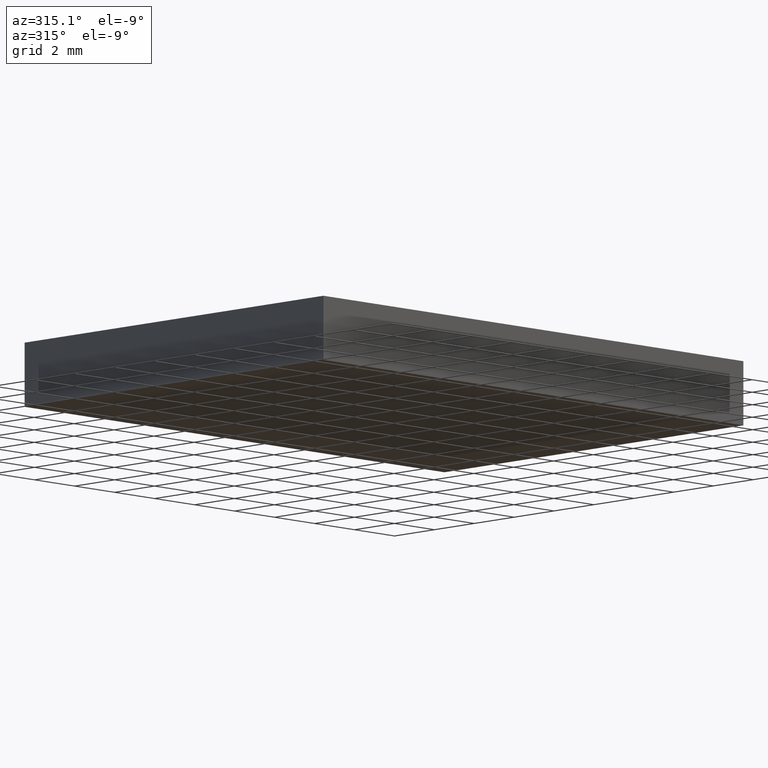
[diagram: clean part render]
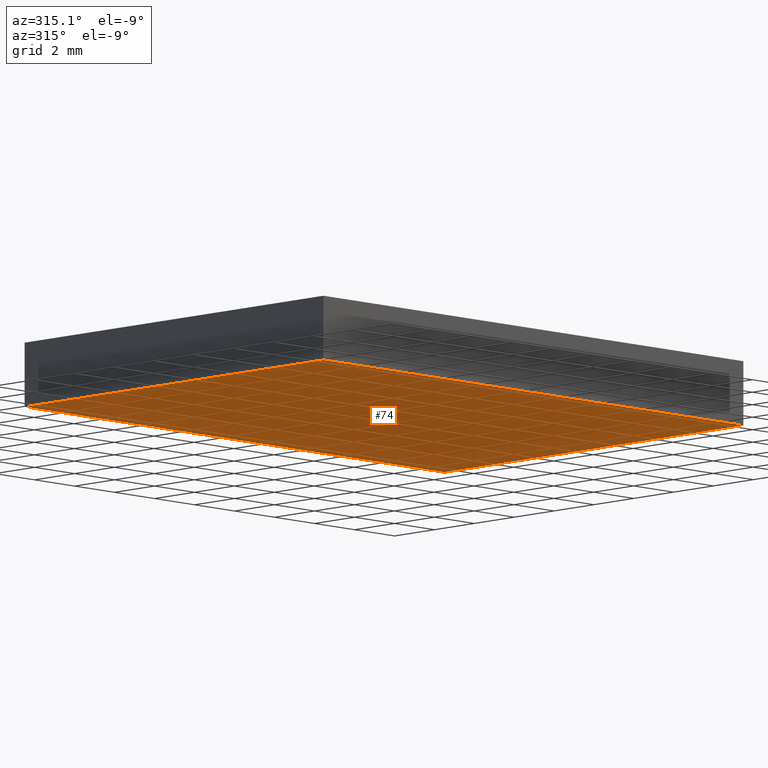
[diagram: same view with one face highlighted and labeled with its STEP entity id]
A machine part, auxiliary view. The second image highlights one B-rep face of the part: STEP entity #74.
In plain terms, the highlighted planar face has unit normal (-0, 0, 1).
Its self-contained STEP definition (entity closure, byte-faithful):
#3 = LINE ( 'NONE', #167, #125 ) ;
#9 = LINE ( 'NONE', #174, #165 ) ;
#18 = ORIENTED_EDGE ( 'NONE', *, *, #115, .F. ) ;
#23 = CARTESIAN_POINT ( 'NONE',  ( 64.80749197114182900, 38.28162091726329700, 0.0000000000000000000 ) ) ;
#29 = EDGE_LOOP ( 'NONE', ( #18, #153, #189, #43 ) ) ;
#43 = ORIENTED_EDGE ( 'NONE', *, *, #199, .F. ) ;
#44 = DIRECTION ( 'NONE',  ( 1.000000000000000000, 0.0000000000000000000, 0.0000000000000000000 ) ) ;
#60 = LINE ( 'NONE', #68, #152 ) ;
#68 = CARTESIAN_POINT ( 'NONE',  ( 43.80749197114183600, 38.28162091726329700, 0.0000000000000000000 ) ) ;
#71 = CARTESIAN_POINT ( 'NONE',  ( 43.80749197114184300, 23.28162091726329700, 0.0000000000000000000 ) ) ;
#74 = ADVANCED_FACE ( 'NONE', ( #102 ), #200, .F. ) ;
#78 = VERTEX_POINT ( 'NONE', #132 ) ;
#83 = CARTESIAN_POINT ( 'NONE',  ( 64.80749197114184300, 23.28162091726329700, 0.0000000000000000000 ) ) ;
#97 = EDGE_CURVE ( 'NONE', #168, #78, #3, .T. ) ;
#101 = DIRECTION ( 'NONE',  ( -0.0000000000000000000, 0.0000000000000000000, 1.000000000000000000 ) ) ;
#102 = FACE_OUTER_BOUND ( 'NONE', #29, .T. ) ;
#108 = VECTOR ( 'NONE', #44, 1000.000000000000000 ) ;
#115 = EDGE_CURVE ( 'NONE', #78, #195, #60, .T. ) ;
#116 = DIRECTION ( 'NONE',  ( 1.000000000000000000, 0.0000000000000000000, 0.0000000000000000000 ) ) ;
#125 = VECTOR ( 'NONE', #148, 1000.000000000000000 ) ;
#130 = CARTESIAN_POINT ( 'NONE',  ( 0.0000000000000000000, 0.0000000000000000000, 0.0000000000000000000 ) ) ;
#132 = CARTESIAN_POINT ( 'NONE',  ( 43.80749197114183600, 38.28162091726329700, 0.0000000000000000000 ) ) ;
#138 = CARTESIAN_POINT ( 'NONE',  ( 43.80749197114184300, 23.28162091726329700, 0.0000000000000000000 ) ) ;
#142 = VERTEX_POINT ( 'NONE', #83 ) ;
#148 = DIRECTION ( 'NONE',  ( -1.000000000000000000, -0.0000000000000000000, -0.0000000000000000000 ) ) ;
#149 = AXIS2_PLACEMENT_3D ( 'NONE', #130, #101, #116 ) ;
#152 = VECTOR ( 'NONE', #169, 1000.000000000000000 ) ;
#153 = ORIENTED_EDGE ( 'NONE', *, *, #97, .F. ) ;
#165 = VECTOR ( 'NONE', #183, 1000.000000000000000 ) ;
#167 = CARTESIAN_POINT ( 'NONE',  ( 43.80749197114183600, 38.28162091726329700, 0.0000000000000000000 ) ) ;
#168 = VERTEX_POINT ( 'NONE', #23 ) ;
#169 = DIRECTION ( 'NONE',  ( 4.625929269271485900E-016, -1.000000000000000000, 0.0000000000000000000 ) ) ;
#174 = CARTESIAN_POINT ( 'NONE',  ( 64.80749197114182900, 38.28162091726329700, 0.0000000000000000000 ) ) ;
#177 = EDGE_CURVE ( 'NONE', #142, #168, #9, .T. ) ;
#183 = DIRECTION ( 'NONE',  ( -9.251858538542971800E-016, 1.000000000000000000, -0.0000000000000000000 ) ) ;
#184 = LINE ( 'NONE', #138, #108 ) ;
#189 = ORIENTED_EDGE ( 'NONE', *, *, #177, .F. ) ;
#195 = VERTEX_POINT ( 'NONE', #71 ) ;
#199 = EDGE_CURVE ( 'NONE', #195, #142, #184, .T. ) ;
#200 = PLANE ( 'NONE',  #149 ) ;